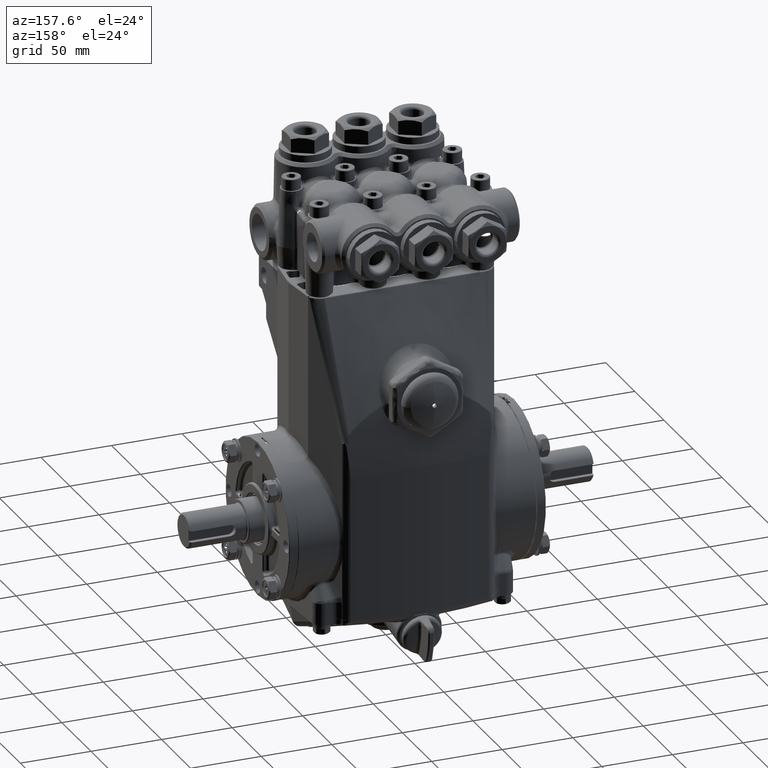
[diagram: clean part render]
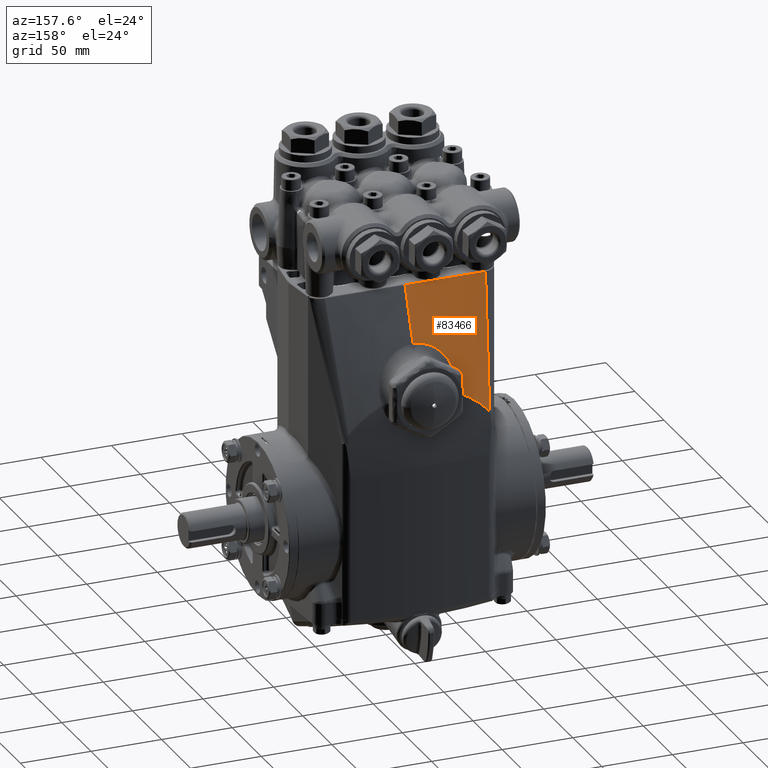
[diagram: same view with one face highlighted and labeled with its STEP entity id]
A machine part, auxiliary view. The second image highlights one B-rep face of the part: STEP entity #83466.
In plain terms, the highlighted face is a freeform B-spline surface patch.
Its self-contained STEP definition (entity closure, byte-faithful):
#472 = CARTESIAN_POINT ( 'NONE',  ( -2.198604993840025834, 1.303204552003782268, 6.521000121180325237 ) ) ;
#669 = CARTESIAN_POINT ( 'NONE',  ( 0.4024140580146031154, 2.282714137246169894, 3.885816525513271724 ) ) ;
#1845 = CARTESIAN_POINT ( 'NONE',  ( -2.242889468066143088, 1.303183471566980778, 6.520931740362723161 ) ) ;
#2796 = CARTESIAN_POINT ( 'NONE',  ( -0.8691335855865260918, 1.974967700795423831, 4.623107657032841544 ) ) ;
#3302 = CARTESIAN_POINT ( 'NONE',  ( -2.015857065217431909, 2.098060744278819278, 3.583443737743760238 ) ) ;
#3479 = CARTESIAN_POINT ( 'NONE',  ( -0.8181274097910946619, 1.954937035283333513, 4.692363439441778361 ) ) ;
#4719 = ORIENTED_EDGE ( 'NONE', *, *, #107452, .T. ) ;
#4836 = CARTESIAN_POINT ( 'NONE',  ( -0.5084002517577607128, 1.880453817892811408, 4.953136979052163547 ) ) ;
#5051 = B_SPLINE_CURVE_WITH_KNOTS ( 'NONE', 3,
 ( #106447, #74937, #117618, #64433, #107120, #11216, #132794 ),
 .UNSPECIFIED., .F., .F.,
 ( 4, 3, 4 ),
 ( 0.0003374136303950777760, 0.02424589558524162941, 0.03933821924561142075 ),
 .UNSPECIFIED. ) ;
#5546 = CARTESIAN_POINT ( 'NONE',  ( -1.048946471091012800, 2.114250418279458810, 4.163105313470231827 ) ) ;
#5657 = CARTESIAN_POINT ( 'NONE',  ( -1.138347952338380820, 1.299212598425195875, 6.535433070866143446 ) ) ;
#6911 = CARTESIAN_POINT ( 'NONE',  ( -1.048450376831963071, 2.113259157913101038, 4.166210843315372614 ) ) ;
#7025 = CARTESIAN_POINT ( 'NONE',  ( -1.072539464497699990, 2.276068596957412815, 3.677786751617869054 ) ) ;
#7600 = CARTESIAN_POINT ( 'NONE',  ( -1.047744645977775502, 2.111873502821445925, 4.170555755565200862 ) ) ;
#7709 = CARTESIAN_POINT ( 'NONE',  ( -1.815914156972153304, 1.940961843331305614, 4.336021358452839536 ) ) ;
#8311 = CARTESIAN_POINT ( 'NONE',  ( -1.690339794217348590, 1.302815946655424995, 6.523803629161010420 ) ) ;
#9063 = CARTESIAN_POINT ( 'NONE',  ( 1.514041149352872040, 2.268035144051591345, 3.427713295126958215 ) ) ;
#9564 = CARTESIAN_POINT ( 'NONE',  ( -2.072394130862306838, 1.303234569111179963, 6.521304771530743061 ) ) ;
#9761 = CARTESIAN_POINT ( 'NONE',  ( 0.2058134450199307908, 1.627294459996755371, 5.660028040929791615 ) ) ;
#10444 = CARTESIAN_POINT ( 'NONE',  ( 1.448806484794300076, 1.299212598425195875, 6.535433070866140781 ) ) ;
#10923 = CARTESIAN_POINT ( 'NONE',  ( -1.897157614048781582, 1.303140485526238512, 6.522164192415416117 ) ) ;
#11121 = CARTESIAN_POINT ( 'NONE',  ( -0.1016464413616585544, 1.627297632012053574, 5.660126067892908175 ) ) ;
#11216 = CARTESIAN_POINT ( 'NONE',  ( -7.840713946942983381E-16, 1.773257215420733113, 5.270665689158987810 ) ) ;
#12312 = CARTESIAN_POINT ( 'NONE',  ( -2.074328466914488356, 1.303234098720613021, 6.521300201827714638 ) ) ;
#12565 = CARTESIAN_POINT ( 'NONE',  ( -0.2112056046048229052, 1.848997435336054762, 5.063510545592998291 ) ) ;
#13069 = CARTESIAN_POINT ( 'NONE',  ( -2.009893760231598936, 2.118068184554910971, 3.508496124013047446 ) ) ;
#13244 = CARTESIAN_POINT ( 'NONE',  ( -0.8375030996107400982, 1.962022833840463942, 4.667781914844892022 ) ) ;
#13821 = CARTESIAN_POINT ( 'NONE',  ( -1.130691403279651341, 2.270550212597886919, 3.664058202181445623 ) ) ;
#13954 = CARTESIAN_POINT ( 'NONE',  ( -0.4618312546916218952, 1.873506977541567364, 4.977546552910339983 ) ) ;
#15327 = CARTESIAN_POINT ( 'NONE',  ( -0.7102915475202077333, 1.922010874072109132, 4.807259245018982163 ) ) ;
#16139 = CARTESIAN_POINT ( 'NONE',  ( -1.891075764596496178, 1.620087220878250633, 5.435727214659490159 ) ) ;
#16851 = CARTESIAN_POINT ( 'NONE',  ( -0.9975791325887850558, 1.951315450445037403, 4.657373076864156580 ) ) ;
#18581 = VERTEX_POINT ( 'NONE', #51079 ) ;
#18921 = CARTESIAN_POINT ( 'NONE',  ( -2.168877686853869946, 1.617727434252478336, 5.363219384641560339 ) ) ;
#19585 = CARTESIAN_POINT ( 'NONE',  ( -0.4139447099412297271, 1.299212598425195875, 6.535433070866140781 ) ) ;
#20011 = ORIENTED_EDGE ( 'NONE', *, *, #108133, .T. ) ;
#20260 = CARTESIAN_POINT ( 'NONE',  ( 1.034861774853070848, 1.299212598425195875, 6.535433070866140781 ) ) ;
#20726 = EDGE_CURVE ( 'NONE', #79881, #111250, #44635, .T. ) ;
#20748 = CARTESIAN_POINT ( 'NONE',  ( -1.903826226595207727, 1.303133148083458037, 6.522169719155704648 ) ) ;
#20950 = CARTESIAN_POINT ( 'NONE',  ( 0.8278894198824566786, 1.299212598425195875, 6.535433070866140781 ) ) ;
#21441 = CARTESIAN_POINT ( 'NONE',  ( -2.072625457868662480, 1.303234512756410890, 6.521304225542129629 ) ) ;
#21632 = CARTESIAN_POINT ( 'NONE',  ( -0.2020875553735168029, 1.955258294199790248, 4.780912005149046351 ) ) ;
#22311 = CARTESIAN_POINT ( 'NONE',  ( 0.7948310577097567053, 2.279523450189995692, 3.785796457838987550 ) ) ;
#23764 = CARTESIAN_POINT ( 'NONE',  ( -0.2276133532787871505, 1.849995200701688880, 5.060022512891737989 ) ) ;
#24311 = CARTESIAN_POINT ( 'NONE',  ( -1.622572283600502985, 2.260474850262625068, 3.353590572003123604 ) ) ;
#24439 = CARTESIAN_POINT ( 'NONE',  ( -0.2603030567198865164, 1.852272057910120395, 5.052057761357116483 ) ) ;
#25135 = CARTESIAN_POINT ( 'NONE',  ( -0.2439497408880068885, 1.851106528970796194, 5.056135439263398368 ) ) ;
#25813 = CARTESIAN_POINT ( 'NONE',  ( -0.3505700416128306740, 1.859876814287212632, 5.025405078837122730 ) ) ;
#26357 = CARTESIAN_POINT ( 'NONE',  ( -1.905459695143534526, 2.251777812233334952, 3.090971539333773332 ) ) ;
#28000 = CARTESIAN_POINT ( 'NONE',  ( -2.069723549706145693, 1.299212598425195875, 6.535433070866140781 ) ) ;
#28679 = CARTESIAN_POINT ( 'NONE',  ( -0.8025696767874468396, 1.952787162655243547, 4.703408496314382070 ) ) ;
#29752 = ORIENTED_EDGE ( 'NONE', *, *, #53412, .T. ) ;
#30075 = CARTESIAN_POINT ( 'NONE',  ( -0.1996451555749676476, 2.283281142087087545, 3.903651472290499136 ) ) ;
#30735 = CARTESIAN_POINT ( 'NONE',  ( 0.4101011592990198573, 1.627046444698853955, 5.652227555748518206 ) ) ;
#31218 = CARTESIAN_POINT ( 'NONE',  ( -1.695594360879107088, 1.302839862579967312, 6.523765088554132063 ) ) ;
#31423 = CARTESIAN_POINT ( 'NONE',  ( 2.078524289917953460, 2.249544390757207690, 2.859597025273891369 ) ) ;
#32130 = CARTESIAN_POINT ( 'NONE',  ( 0.4139447099412282283, 1.299212598425195875, 6.535433070866140781 ) ) ;
#32613 = CARTESIAN_POINT ( 'NONE',  ( -1.901844769942740321, 1.303135566700967640, 6.522167269863963668 ) ) ;
#32810 = CARTESIAN_POINT ( 'NONE',  ( -0.6209170649118443963, 1.299212598425195875, 6.535433070866142558 ) ) ;
#32833 = CARTESIAN_POINT ( 'NONE',  ( -1.041533217244492660, 2.271803740172789077, 3.703202409397690520 ) ) ;
#34257 = CARTESIAN_POINT ( 'NONE',  ( -0.5844638775328970803, 1.893395328412785350, 4.907646046683542096 ) ) ;
#34347 = VERTEX_POINT ( 'NONE', #32833 ) ;
#34772 = CARTESIAN_POINT ( 'NONE',  ( -2.029393201424144255, 2.051820080033732729, 3.756581077384122391 ) ) ;
#34956 = CARTESIAN_POINT ( 'NONE',  ( -0.9598595248348679165, 2.020223441476601600, 4.468376312234677350 ) ) ;
#35547 = B_SPLINE_CURVE_WITH_KNOTS ( 'NONE', 3,
 ( #100033, #55276, #99348, #46837, #100723, #12565, #23764, #25135, #65783, #24439, #108465, #25813, #67152, #55961, #13954, #120336, #109856, #90222, #89516, #4836, #87458, #34257, #68537, #109154, #130154, #76968, #15327, #67855, #98651, #56674, #121741, #3479, #13244, #111235, #2796, #57352, #45469, #88156, #130857, #34956, #46162, #88832, #131536, #110558, #102121, #135003, #7600, #6911, #59444, #5546, #61505, #48214, #133608, #125187 ),
 .UNSPECIFIED., .F., .F.,
 ( 4, 2, 2, 1, 2, 2, 2, 2, 1, 1, 2, 2, 2, 1, 1, 1, 2, 2, 2, 1, 1, 1, 2, 2, 2, 2, 1, 1, 1, 1, 1, 2, 2, 4 ),
 ( 0.000000000000000000, 0.06249999999998329114, 0.09374999999997490896, 0.1093749999999708428, 0.1171874999999689415, 0.1249999999999670541, 0.1874999999999522604, 0.2187499999999451827, 0.2343749999999415745, 0.2421874999999394651, 0.2460937499999381051, 0.2499999999999367173, 0.3124999999999213407, 0.3437499999999136246, 0.3593749999999095723, 0.3671874999999076294, 0.3710937499999066858, 0.3749999999999057421, 0.4374999999998955835, 0.4687499999998904210, 0.4843749999998879785, 0.4921874999998865352, 0.4960937499998853695, 0.4999999999998842037, 0.6249999999998610001, 0.6874999999998490097, 0.7187499999998426814, 0.7343749999998395728, 0.7421874999998380185, 0.7460937499998371303, 0.7480468749998367972, 0.7490234374998369082, 0.7499999999998371303, 1.000000000000000000 ),
 .UNSPECIFIED. ) ;
#37810 = CARTESIAN_POINT ( 'NONE',  ( -1.984732554181799724, 1.619328761902418812, 5.412368713392144315 ) ) ;
#39199 = CARTESIAN_POINT ( 'NONE',  ( -1.094475627111260341, 1.950449930780007168, 4.630335524700627481 ) ) ;
#40579 = CARTESIAN_POINT ( 'NONE',  ( -0.5979691708398126027, 2.281413911206460199, 3.845027360530513416 ) ) ;
#41269 = CARTESIAN_POINT ( 'NONE',  ( 2.064016187563357363, 1.936334572335544513, 4.193623449363257372 ) ) ;
#41954 = CARTESIAN_POINT ( 'NONE',  ( 1.138347952338378155, 1.299212598425195875, 6.535433070866140781 ) ) ;
#42441 = CARTESIAN_POINT ( 'NONE',  ( -1.971954707261740047, 1.303127902564772622, 6.521987746791599427 ) ) ;
#42640 = CARTESIAN_POINT ( 'NONE',  ( 2.213572279827760170, 1.932767126646536937, 4.084875707137974210 ) ) ;
#43329 = CARTESIAN_POINT ( 'NONE',  ( 1.075040638229151746, 2.276030985658306971, 3.676614831474853240 ) ) ;
#44504 = CARTESIAN_POINT ( 'NONE',  ( -1.900585205842190151, 1.303137115142055880, 6.522165676073848672 ) ) ;
#44635 = B_SPLINE_CURVE_WITH_KNOTS ( 'NONE', 3,
 ( #103367, #50156, #94226, #92147 ),
 .UNSPECIFIED., .F., .F.,
 ( 4, 4 ),
 ( 0.4332994890773434471, 0.4362303611599745445 ),
 .UNSPECIFIED. ) ;
#45284 = CARTESIAN_POINT ( 'NONE',  ( -1.980576549137500475, 2.213915170793006038, 3.149390972694495971 ) ) ;
#45469 = CARTESIAN_POINT ( 'NONE',  ( -0.8763790847005360485, 1.978118488699655231, 4.612266306818693984 ) ) ;
#45979 = CARTESIAN_POINT ( 'NONE',  ( -2.034696585288667148, 2.033395393086714797, 3.825531984624838344 ) ) ;
#46162 = CARTESIAN_POINT ( 'NONE',  ( -1.002224558917678365, 2.054022228700103092, 4.356355509081242694 ) ) ;
#46837 = CARTESIAN_POINT ( 'NONE',  ( -0.1562445097660399018, 1.846125881416177394, 5.073543618274282352 ) ) ;
#47358 = CARTESIAN_POINT ( 'NONE',  ( -2.039592545178605221, 2.016255469052942395, 3.889656437366334707 ) ) ;
#48214 = CARTESIAN_POINT ( 'NONE',  ( -1.072105156390874336, 2.161155364773630350, 4.016254122249142355 ) ) ;
#48326 = CARTESIAN_POINT ( 'NONE',  ( -1.034861774853073735, 1.299212598425195875, 6.535433070866143446 ) ) ;
#49002 = VERTEX_POINT ( 'NONE', #56194 ) ;
#49722 = CARTESIAN_POINT ( 'NONE',  ( -0.9789378114566406053, 2.277366876454958611, 3.718343079863162703 ) ) ;
#50156 = CARTESIAN_POINT ( 'NONE',  ( -1.693853009375102969, 1.302818093157324553, 6.523763931886704448 ) ) ;
#50996 = CARTESIAN_POINT ( 'NONE',  ( -1.126893372803539961, 1.303347117195267080, 6.523392559263681889 ) ) ;
#51072 = CARTESIAN_POINT ( 'NONE',  ( 1.561287046156886182, 1.945094295509459670, 4.463619887040017886 ) ) ;
#51079 = CARTESIAN_POINT ( 'NONE',  ( 0.000000000000000000, 1.303874827123127744, 6.522994084420179028 ) ) ;
#51766 = CARTESIAN_POINT ( 'NONE',  ( 2.069723549706143917, 1.299212598425195875, 6.535433070866140781 ) ) ;
#52252 = CARTESIAN_POINT ( 'NONE',  ( -2.033518159628054711, 1.303226970221583070, 6.521455456323041133 ) ) ;
#52445 = CARTESIAN_POINT ( 'NONE',  ( -0.2069723549706150856, 1.299212598425195875, 6.535433070866140781 ) ) ;
#52923 = CARTESIAN_POINT ( 'NONE',  ( -2.091119276760457613, 1.303230026504733186, 6.521260417363283324 ) ) ;
#53120 = CARTESIAN_POINT ( 'NONE',  ( 0.2069723549706137533, 1.299212598425195875, 6.535433070866140781 ) ) ;
#53412 = EDGE_CURVE ( 'NONE', #111250, #18581, #59240, .T. ) ;
#53479 = EDGE_CURVE ( 'NONE', #34347, #49002, #79278, .T. ) ;
#53816 = CARTESIAN_POINT ( 'NONE',  ( -0.4002828220077736532, 2.282531958115326720, 3.880126332154517410 ) ) ;
#55018 = CARTESIAN_POINT ( 'NONE',  ( -2.070565611758128810, 1.303235005464962626, 6.521309118756675183 ) ) ;
#55276 = CARTESIAN_POINT ( 'NONE',  ( -0.04502569453652381648, 1.842806143284725806, 5.085118422620766410 ) ) ;
#55830 = CARTESIAN_POINT ( 'NONE',  ( -1.386629650403558456, 2.265946635969432688, 3.521905276535707507 ) ) ;
#55961 = CARTESIAN_POINT ( 'NONE',  ( -0.4319975725424940460, 1.869442297146117316, 4.991823606273102065 ) ) ;
#56194 = CARTESIAN_POINT ( 'NONE',  ( -1.969283401333570938, 2.249277433038161078, 3.017030524756072474 ) ) ;
#56539 = CARTESIAN_POINT ( 'NONE',  ( -1.696676590981896160, 2.258456798862484849, 3.292011194069374813 ) ) ;
#56674 = CARTESIAN_POINT ( 'NONE',  ( -0.7490518416406762858, 1.932381296769864809, 4.770943243063372030 ) ) ;
#57352 = CARTESIAN_POINT ( 'NONE',  ( -0.8734901318143187821, 1.976855944317258418, 4.616609424987959009 ) ) ;
#58564 = CARTESIAN_POINT ( 'NONE',  ( -2.104023726110235692, 1.781150927990455823, 4.765521334715924873 ) ) ;
#59240 = B_SPLINE_CURVE_WITH_KNOTS ( 'NONE', 3,
 ( #8311, #50996, #93692, #63589 ),
 .UNSPECIFIED., .F., .F.,
 ( 4, 4 ),
 ( 0.01406537931565059185, 0.05700002236171951980 ),
 .UNSPECIFIED. ) ;
#59444 = CARTESIAN_POINT ( 'NONE',  ( -1.048748597885513112, 2.113853807759729975, 4.164347667581993484 ) ) ;
#59556 = CARTESIAN_POINT ( 'NONE',  ( -2.138791567245843517, 1.934550967561894375, 4.139253177447304033 ) ) ;
#59959 = CARTESIAN_POINT ( 'NONE',  ( -2.104176596812008082, 1.780569754446585717, 4.767677203724272061 ) ) ;
#60232 = FACE_OUTER_BOUND ( 'NONE', #105353, .T. ) ;
#61505 = CARTESIAN_POINT ( 'NONE',  ( -1.049053237010273865, 2.114465622598539873, 4.162431387521945858 ) ) ;
#61612 = CARTESIAN_POINT ( 'NONE',  ( -2.276695904676759863, 1.299212598425195875, 6.535433070866140781 ) ) ;
#62292 = CARTESIAN_POINT ( 'NONE',  ( -0.1034861774853078620, 1.299212598425195875, 6.535433070866140781 ) ) ;
#62979 = CARTESIAN_POINT ( 'NONE',  ( 0.2046545350692477727, 1.955376321568314868, 4.784623010993441561 ) ) ;
#63589 = CARTESIAN_POINT ( 'NONE',  ( 0.000000000000000000, 1.303874827123127744, 6.522994084420179028 ) ) ;
#63668 = CARTESIAN_POINT ( 'NONE',  ( 1.655778839764914689, 1.299212598425195875, 6.535433070866140781 ) ) ;
#63927 = ORIENTED_EDGE ( 'NONE', *, *, #120342, .T. ) ;
#64144 = CARTESIAN_POINT ( 'NONE',  ( -2.048913166553662624, 1.303235879029812860, 6.521375478803422610 ) ) ;
#64433 = CARTESIAN_POINT ( 'NONE',  ( -6.747251032203251776E-16, 1.634231296623841034, 5.641591560323128363 ) ) ;
#64829 = CARTESIAN_POINT ( 'NONE',  ( -2.065850031007234300, 1.303235838194539031, 6.521321346276030440 ) ) ;
#65030 = CARTESIAN_POINT ( 'NONE',  ( 1.343176999786138914, 2.271678482896280382, 3.540933654448064516 ) ) ;
#65531 = CARTESIAN_POINT ( 'NONE',  ( -2.103710276262927170, 1.303227008921030272, 6.521230196800539503 ) ) ;
#65634 = ORIENTED_EDGE ( 'NONE', *, *, #20726, .T. ) ;
#65783 = CARTESIAN_POINT ( 'NONE',  ( -0.2548243414440665155, 1.851872647711632958, 5.053455288309906202 ) ) ;
#66294 = CARTESIAN_POINT ( 'NONE',  ( -1.992170046785848747, 2.176693751127848575, 3.288863769030317741 ) ) ;
#67152 = CARTESIAN_POINT ( 'NONE',  ( -0.4118410756967394448, 1.866914452991983442, 5.000699872643941113 ) ) ;
#67227 = VERTEX_POINT ( 'NONE', #78888 ) ;
#67778 = CARTESIAN_POINT ( 'NONE',  ( -2.242889468066143088, 1.303183471566980778, 6.520931740362723161 ) ) ;
#67855 = CARTESIAN_POINT ( 'NONE',  ( -0.7142577851939858613, 1.923058061256917473, 4.803591491492423593 ) ) ;
#68537 = CARTESIAN_POINT ( 'NONE',  ( -0.6363244316096204889, 1.904216260181281095, 4.869651898683002855 ) ) ;
#68858 = B_SPLINE_CURVE_WITH_KNOTS ( 'NONE', 3,
 ( #1845, #74642, #472, #65531, #52923, #95644, #12312, #117326, #21441, #9564, #138322, #55018, #64829, #64144, #52252, #76711, #42441, #85835, #87202, #85140, #20748, #97020, #97702, #32613, #106829, #44504, #10923, #94973, #129897, #119393, #108216, #31218 ),
 .UNSPECIFIED., .F., .F.,
 ( 4, 2, 1, 1, 1, 2, 2, 1, 1, 1, 2, 2, 1, 1, 1, 2, 2, 1, 1, 1, 2, 4 ),
 ( 0.000000000000000000, 0.1083248722693957306, 0.1218654813030701500, 0.1235580574322795999, 0.1244043454968843110, 0.1248274895291866943, 0.1250390615453377263, 0.1252506335614887445, 0.1286357858199022042, 0.1354060903367290403, 0.1624873084040359406, 0.2166497445386491028, 0.2437309626059556700, 0.2471161148643692407, 0.2488086909935763036, 0.2496549790581798767, 0.2500781230904816077, 0.2505012671227833665, 0.2572715716396186125, 0.2708121806732906034, 0.3249746168079745701, 0.4332994890773434471 ),
 .UNSPECIFIED. ) ;
#69320 = CARTESIAN_POINT ( 'NONE',  ( -2.380182082162066504, 1.299212598425195875, 6.535433070866140781 ) ) ;
#70448 = CARTESIAN_POINT ( 'NONE',  ( -2.039255149049658655, 2.017440514121979334, 3.885223523361690301 ) ) ;
#70729 = CARTESIAN_POINT ( 'NONE',  ( -1.448806484794302518, 1.299212598425195875, 6.535433070866143446 ) ) ;
#71127 = CARTESIAN_POINT ( 'NONE',  ( -2.067507495042413268, 1.917100978669542988, 4.260115974954152840 ) ) ;
#71402 = CARTESIAN_POINT ( 'NONE',  ( -1.899741558657453311, 1.939444925379641971, 4.289304355918147849 ) ) ;
#72793 = CARTESIAN_POINT ( 'NONE',  ( 0.7154840230876414742, 1.626295873618706089, 5.628694108209940872 ) ) ;
#73463 = CARTESIAN_POINT ( 'NONE',  ( -0.4048367846522590296, 1.954758838218616512, 4.765228578391724312 ) ) ;
#74150 = CARTESIAN_POINT ( 'NONE',  ( 1.820408839518392607, 2.259648125356275461, 3.168757087023454488 ) ) ;
#74642 = CARTESIAN_POINT ( 'NONE',  ( -2.241477257648621269, 1.303196635085215105, 6.520880795183003897 ) ) ;
#74937 = CARTESIAN_POINT ( 'NONE',  ( -4.905913607710590776E-16, 1.413993621865241579, 6.229193234341924956 ) ) ;
#75516 = CARTESIAN_POINT ( 'NONE',  ( 1.986618646310226444, 1.619357774068889144, 5.413207742918578980 ) ) ;
#76309 = B_SPLINE_SURFACE_WITH_KNOTS ( 'NONE', 3, 3, ( 
 ( #114107, #123938, #93086, #113435 ),
 ( #81921, #59556, #82595, #69320 ),
 ( #103624, #114806, #18921, #61612 ),
 ( #102926, #71402, #37810, #28000 ),
 ( #112741, #7709, #16139, #104300 ),
 ( #90324, #79841, #135115, #122527 ),
 ( #112035, #101540, #123230, #70729 ),
 ( #7025, #39199, #124626, #5657 ),
 ( #49722, #16851, #92405, #48326 ),
 ( #91000, #28679, #94479, #126012 ),
 ( #40579, #96528, #107025, #32810 ),
 ( #53816, #73463, #107709, #19585 ),
 ( #30075, #21632, #117527, #52445 ),
 ( #137174, #105676, #11121, #62292 ),
 ( #137848, #62979, #9761, #53120 ),
 ( #669, #138521, #30735, #32130 ),
 ( #93772, #116830, #72793, #104975 ),
 ( #22311, #84657, #136478, #20950 ),
 ( #126678, #116137, #106354, #20260 ),
 ( #43329, #83305, #95172, #41954 ),
 ( #65030, #127336, #115483, #10444 ),
 ( #9063, #51072, #86031, #63668 ),
 ( #74150, #128719, #75516, #51766 ),
 ( #118199, #41269, #95842, #83987 ),
 ( #31423, #42640, #85343, #128041 ) ),
 .UNSPECIFIED., .F., .F., .F.,
 ( 4, 2, 2, 2, 2, 1, 2, 2, 2, 2, 2, 2, 4 ),
 ( 4, 4 ),
 ( 0.000000000000000000, 0.06249999999999977796, 0.1249999999999997780, 0.2499999999999997780, 0.3124999999999997780, 0.3749999999999997780, 0.4374999999999998890, 0.4999999999999998890, 0.6249999999999998890, 0.6874999999999997780, 0.7499999999999997780, 0.8749999999999998890, 1.000000000000000000 ),
 ( 0.000000000000000000, 1.000000000000000000 ),
 .UNSPECIFIED. ) ;
#76711 = CARTESIAN_POINT ( 'NONE',  ( -1.996573721879082886, 1.303188368631058802, 6.521705108787855920 ) ) ;
#76787 = CARTESIAN_POINT ( 'NONE',  ( -1.969283401333570938, 2.249277433038161078, 3.017030524756072474 ) ) ;
#76968 = CARTESIAN_POINT ( 'NONE',  ( -0.7043244490450779605, 1.920447369413672334, 4.812735924575123114 ) ) ;
#77487 = B_SPLINE_CURVE_WITH_KNOTS ( 'NONE', 3,
 ( #76787, #45284, #66294, #13069, #3302, #87975, #34772, #45979, #78168, #92114, #70448, #47358, #111749, #71127, #124350, #79557, #90046, #113154, #132749, #122254, #58564, #59959, #100541, #80942, #102639, #92798, #101951 ),
 .UNSPECIFIED., .F., .F.,
 ( 4, 2, 2, 1, 1, 1, 2, 2, 1, 1, 1, 1, 1, 1, 2, 2, 2, 4 ),
 ( 0.005641731690138021039, 0.1293381763867609835, 0.1911863987350724825, 0.2221105099092279822, 0.2375725654963057876, 0.2453035932898448845, 0.2491691071866144469, 0.2530346210833839815, 0.3767310657800118645, 0.4385792881283260836, 0.4695033993024831931, 0.4849654548895614981, 0.4926964826831005118, 0.4965619965798699353, 0.4984947535282545084, 0.5004275104766390259, 0.7478203998698899069, 0.9952132892631408989 ),
 .UNSPECIFIED. ) ;
#78168 = CARTESIAN_POINT ( 'NONE',  ( -2.037354366251948434, 2.024106466280659156, 3.860286317184686844 ) ) ;
#78888 = CARTESIAN_POINT ( 'NONE',  ( 7.856720868780860474E-16, 1.842770180353480391, 5.085202755651217821 ) ) ;
#79278 = B_SPLINE_CURVE_WITH_KNOTS ( 'NONE', 3,
 ( #99904, #13821, #109729, #55830, #132098, #24311, #56539, #99221, #26357, #130020 ),
 .UNSPECIFIED., .F., .F.,
 ( 4, 2, 2, 2, 4 ),
 ( 0.004531225126507739884, 0.01195000812040867937, 0.01936879111430962752, 0.02678757410821057394, 0.03420635710211152036 ),
 .UNSPECIFIED. ) ;
#79557 = CARTESIAN_POINT ( 'NONE',  ( -2.095277330354888612, 1.814225585600651502, 4.642765349930773056 ) ) ;
#79841 = CARTESIAN_POINT ( 'NONE',  ( -1.558289455644661370, 1.945165731996254532, 4.465837177507690825 ) ) ;
#79881 = VERTEX_POINT ( 'NONE', #84986 ) ;
#80942 = CARTESIAN_POINT ( 'NONE',  ( -2.151067203562875729, 1.604579134061053347, 5.417896058936713111 ) ) ;
#81921 = CARTESIAN_POINT ( 'NONE',  ( -2.018096309787731801, 2.252220152130243402, 2.941163230737885659 ) ) ;
#82595 = CARTESIAN_POINT ( 'NONE',  ( -2.259486824703954788, 1.616881782993545125, 5.337343124156722851 ) ) ;
#83305 = CARTESIAN_POINT ( 'NONE',  ( 1.096143076265560623, 1.950424856580603272, 4.629554244605282420 ) ) ;
#83466 = ADVANCED_FACE ( 'NONE', ( #60232 ), #76309, .F. ) ;
#83987 = CARTESIAN_POINT ( 'NONE',  ( 2.276695904676758531, 1.299212598425195875, 6.535433070866140781 ) ) ;
#84657 = CARTESIAN_POINT ( 'NONE',  ( 0.8058505117673232521, 1.952753166268395901, 4.702341995514705886 ) ) ;
#84986 = CARTESIAN_POINT ( 'NONE',  ( -1.695594360879107088, 1.302839862579967312, 6.523765088554132063 ) ) ;
#85140 = CARTESIAN_POINT ( 'NONE',  ( -1.906521298295523303, 1.303130060796677814, 6.522172367098517221 ) ) ;
#85343 = CARTESIAN_POINT ( 'NONE',  ( 2.348620269737566879, 1.615989862535866628, 5.310154389002057052 ) ) ;
#85835 = CARTESIAN_POINT ( 'NONE',  ( -1.935008617338049630, 1.303111762778909943, 6.522151766865674993 ) ) ;
#86031 = CARTESIAN_POINT ( 'NONE',  ( 1.608532942960900547, 1.622153446967327772, 5.499526478953079334 ) ) ;
#87202 = CARTESIAN_POINT ( 'NONE',  ( -1.921151242050709973, 1.303115180536739137, 6.522180386412981257 ) ) ;
#87458 = CARTESIAN_POINT ( 'NONE',  ( -0.5483710643121679773, 1.886801629246836143, 4.930825655352372827 ) ) ;
#87975 = CARTESIAN_POINT ( 'NONE',  ( -2.024869860137846977, 2.067350199555262336, 3.698439582320026009 ) ) ;
#88156 = CARTESIAN_POINT ( 'NONE',  ( -0.8778577183282735286, 1.978770219747418402, 4.610025332469225745 ) ) ;
#88832 = CARTESIAN_POINT ( 'NONE',  ( -1.014349966220424948, 2.065643596123559522, 4.318281743276188855 ) ) ;
#89352 = VERTEX_POINT ( 'NONE', #67778 ) ;
#89516 = CARTESIAN_POINT ( 'NONE',  ( -0.5059088115912473427, 1.880061655986753566, 4.954515287383319588 ) ) ;
#90046 = CARTESIAN_POINT ( 'NONE',  ( -2.099823510332839760, 1.797076230404204722, 4.706431320396312401 ) ) ;
#90222 = CARTESIAN_POINT ( 'NONE',  ( -0.5010535940836021718, 1.879304619600165926, 4.957175873462685622 ) ) ;
#90324 = CARTESIAN_POINT ( 'NONE',  ( -1.509544763584533822, 2.268142298781783861, 3.431039230828464071 ) ) ;
#91000 = CARTESIAN_POINT ( 'NONE',  ( -0.7899098052399405878, 2.279574444770267050, 3.787396209038501382 ) ) ;
#92114 = CARTESIAN_POINT ( 'NONE',  ( -2.038494671652133494, 2.020109083724238364, 3.875240692620719241 ) ) ;
#92147 = CARTESIAN_POINT ( 'NONE',  ( -1.690339794217348590, 1.302815946655424995, 6.523803629161010420 ) ) ;
#92405 = CARTESIAN_POINT ( 'NONE',  ( -1.016220453720929395, 1.625264024435116639, 5.596403073865150013 ) ) ;
#92798 = CARTESIAN_POINT ( 'NONE',  ( -2.219596835928836054, 1.371663885670308280, 6.270709733077245218 ) ) ;
#93086 = CARTESIAN_POINT ( 'NONE',  ( -2.348620269737569544, 1.615989862535865962, 5.310154389002058828 ) ) ;
#93692 = CARTESIAN_POINT ( 'NONE',  ( -0.5634469790333801464, 1.303876253747656699, 6.522993007173084834 ) ) ;
#93772 = CARTESIAN_POINT ( 'NONE',  ( 0.6976455844686251240, 2.280462424005726074, 3.815216182897540609 ) ) ;
#94226 = CARTESIAN_POINT ( 'NONE',  ( -1.692101517647209841, 1.302814124229947801, 6.523780928714470129 ) ) ;
#94479 = CARTESIAN_POINT ( 'NONE',  ( -0.8152295483349530913, 1.625999880540219822, 5.619420783590262758 ) ) ;
#94973 = CARTESIAN_POINT ( 'NONE',  ( -1.883039598492668221, 1.303146309984112294, 6.522185264558583384 ) ) ;
#95172 = CARTESIAN_POINT ( 'NONE',  ( 1.117245514301969278, 1.624818727502899574, 5.582493657735712489 ) ) ;
#95644 = CARTESIAN_POINT ( 'NONE',  ( -2.076962821636054279, 1.303233458869344608, 6.521293970604745027 ) ) ;
#95671 = ORIENTED_EDGE ( 'NONE', *, *, #110345, .T. ) ;
#95842 = CARTESIAN_POINT ( 'NONE',  ( 2.170356046120057947, 1.617773585380370305, 5.364528260114698632 ) ) ;
#96528 = CARTESIAN_POINT ( 'NONE',  ( -0.6056184688638230895, 1.954013473612705720, 4.741829263975723130 ) ) ;
#97020 = CARTESIAN_POINT ( 'NONE',  ( -1.902671178431931676, 1.303134545400175259, 6.522168333798768813 ) ) ;
#97702 = CARTESIAN_POINT ( 'NONE',  ( -1.902093651456501000, 1.303135256425061783, 6.522167599393831061 ) ) ;
#98651 = CARTESIAN_POINT ( 'NONE',  ( -0.7162784349061362965, 1.923595726491191815, 4.801708514956535723 ) ) ;
#99221 = CARTESIAN_POINT ( 'NONE',  ( -1.838112334298227291, 2.254110649831492008, 3.160691993887410955 ) ) ;
#99348 = CARTESIAN_POINT ( 'NONE',  ( -0.08976380259595712063, 1.843649325101285763, 5.082185539537545260 ) ) ;
#99904 = CARTESIAN_POINT ( 'NONE',  ( -1.041533217244492660, 2.271803740172789077, 3.703202409397690520 ) ) ;
#100033 = CARTESIAN_POINT ( 'NONE',  ( 7.856720868780860474E-16, 1.842770180353480391, 5.085202755651217821 ) ) ;
#100541 = CARTESIAN_POINT ( 'NONE',  ( -2.128129798516092741, 1.689511524556636335, 5.105438811511312736 ) ) ;
#100723 = CARTESIAN_POINT ( 'NONE',  ( -0.1783005835005510853, 1.847153346818469766, 5.069955334882952691 ) ) ;
#101540 = CARTESIAN_POINT ( 'NONE',  ( -1.377948966803905329, 1.947534219307221592, 4.539444691850007096 ) ) ;
#101951 = CARTESIAN_POINT ( 'NONE',  ( -2.242889468066143088, 1.303183471566980778, 6.520931740362723161 ) ) ;
#102121 = CARTESIAN_POINT ( 'NONE',  ( -1.043233210972307701, 2.103611648645474563, 4.196554117986327270 ) ) ;
#102639 = CARTESIAN_POINT ( 'NONE',  ( -2.196801966743004542, 1.445655353129325693, 6.000532626565719951 ) ) ;
#102926 = CARTESIAN_POINT ( 'NONE',  ( -1.814750563133107342, 2.259561088856864242, 3.166239998444151826 ) ) ;
#103367 = CARTESIAN_POINT ( 'NONE',  ( -1.695594360879107088, 1.302839862579967312, 6.523765088554132063 ) ) ;
#103624 = CARTESIAN_POINT ( 'NONE',  ( -1.953241251208090556, 2.254757105907042813, 3.018792012192400342 ) ) ;
#104300 = CARTESIAN_POINT ( 'NONE',  ( -1.966237372220838386, 1.299212598425195875, 6.535433070866140781 ) ) ;
#104975 = CARTESIAN_POINT ( 'NONE',  ( 0.7244032423971497048, 1.299212598425195875, 6.535433070866140781 ) ) ;
#105353 = EDGE_LOOP ( 'NONE', ( #65634, #29752, #95671, #20011, #124016, #4719, #63927 ) ) ;
#105676 = CARTESIAN_POINT ( 'NONE',  ( -0.09980670523800924676, 1.955382665598911718, 4.784819064919673792 ) ) ;
#106354 = CARTESIAN_POINT ( 'NONE',  ( 1.017659377637137652, 1.625244951225160328, 5.595808111142073216 ) ) ;
#106447 = CARTESIAN_POINT ( 'NONE',  ( 0.000000000000000000, 1.303874827123127744, 6.522994084420179028 ) ) ;
#106829 = CARTESIAN_POINT ( 'NONE',  ( -1.901712566931274662, 1.303135731024777755, 6.522167096488042048 ) ) ;
#107025 = CARTESIAN_POINT ( 'NONE',  ( -0.6132677668878337984, 1.626613036018950798, 5.638631167420932400 ) ) ;
#107120 = CARTESIAN_POINT ( 'NONE',  ( -6.747251032203251776E-16, 1.703744252783319535, 5.456128623527068733 ) ) ;
#107452 = EDGE_CURVE ( 'NONE', #49002, #89352, #77487, .T. ) ;
#107709 = CARTESIAN_POINT ( 'NONE',  ( -0.4093907472967443506, 1.626985718321906083, 5.650330824628932547 ) ) ;
#108133 = EDGE_CURVE ( 'NONE', #67227, #34347, #35547, .T. ) ;
#108216 = CARTESIAN_POINT ( 'NONE',  ( -1.759949606251109522, 1.302967366142548933, 6.523123405842072842 ) ) ;
#108465 = CARTESIAN_POINT ( 'NONE',  ( -0.3086435396890369054, 1.855913069811160110, 5.039315346933300965 ) ) ;
#109154 = CARTESIAN_POINT ( 'NONE',  ( -0.6616849484283897631, 1.909859309707075070, 4.849848268328067036 ) ) ;
#109729 = CARTESIAN_POINT ( 'NONE',  ( -1.217594213962654992, 2.269128931642199642, 3.619967092695878907 ) ) ;
#109856 = CARTESIAN_POINT ( 'NONE',  ( -0.4937582157875373690, 1.878177591332976126, 4.961136603252557009 ) ) ;
#110345 = EDGE_CURVE ( 'NONE', #18581, #67227, #5051, .T. ) ;
#110558 = CARTESIAN_POINT ( 'NONE',  ( -1.036477241104133196, 2.092734511596072267, 4.231022694858762812 ) ) ;
#111235 = CARTESIAN_POINT ( 'NONE',  ( -0.8588063631930812347, 1.970600794406622835, 4.638154576237058180 ) ) ;
#111250 = VERTEX_POINT ( 'NONE', #128241 ) ;
#111749 = CARTESIAN_POINT ( 'NONE',  ( -2.051087863689119661, 1.975864094663217996, 4.040739276079862385 ) ) ;
#112035 = CARTESIAN_POINT ( 'NONE',  ( -1.342520207808706623, 2.271695029748234784, 3.541450502341939810 ) ) ;
#112741 = CARTESIAN_POINT ( 'NONE',  ( -1.740752549347811096, 2.261836465784360151, 3.236315502246188025 ) ) ;
#113154 = CARTESIAN_POINT ( 'NONE',  ( -2.102087708257041943, 1.788501175651054487, 4.738252424846279176 ) ) ;
#113435 = CARTESIAN_POINT ( 'NONE',  ( -2.483668259647373144, 1.299212598425195875, 6.535433070866140781 ) ) ;
#114107 = CARTESIAN_POINT ( 'NONE',  ( -2.078524289917963674, 2.249544390757206358, 2.859597025273892257 ) ) ;
#114806 = CARTESIAN_POINT ( 'NONE',  ( -2.061059469030980029, 1.936242270079760575, 4.191005698416980785 ) ) ;
#115483 = CARTESIAN_POINT ( 'NONE',  ( 1.413596656458246281, 1.623367893248890415, 5.537266598726781730 ) ) ;
#116137 = CARTESIAN_POINT ( 'NONE',  ( 1.000456980421204012, 1.951277304025125003, 4.656183151418004762 ) ) ;
#116830 = CARTESIAN_POINT ( 'NONE',  ( 0.7065648037781333546, 1.953379148812216082, 4.721955145553740962 ) ) ;
#117326 = CARTESIAN_POINT ( 'NONE',  ( -2.073193760571991895, 1.303234374564354425, 6.521302883110692505 ) ) ;
#117527 = CARTESIAN_POINT ( 'NONE',  ( -0.2045299551720659303, 1.627235446312492950, 5.658172538007593566 ) ) ;
#117618 = CARTESIAN_POINT ( 'NONE',  ( -6.747251032203251776E-16, 1.524112451085763542, 5.935392394274551897 ) ) ;
#118199 = CARTESIAN_POINT ( 'NONE',  ( 1.957676329006656779, 2.254895559290718943, 3.022718638611816555 ) ) ;
#119393 = CARTESIAN_POINT ( 'NONE',  ( -1.810273177648906051, 1.303062822555161704, 6.522669118617584694 ) ) ;
#120336 = CARTESIAN_POINT ( 'NONE',  ( -0.4766478234450647333, 1.875607545460807213, 4.970167336891750054 ) ) ;
#120342 = EDGE_CURVE ( 'NONE', #89352, #79881, #68858, .T. ) ;
#121741 = CARTESIAN_POINT ( 'NONE',  ( -0.7778794209856284558, 1.941119972772706870, 4.740407087958465659 ) ) ;
#122254 = CARTESIAN_POINT ( 'NONE',  ( -2.103701330979389716, 1.782375980943467386, 4.760976884162536393 ) ) ;
#122527 = CARTESIAN_POINT ( 'NONE',  ( -1.655778839764916688, 1.299212598425195875, 6.535433070866143446 ) ) ;
#123230 = CARTESIAN_POINT ( 'NONE',  ( -1.413377725799104034, 1.623373408866208623, 5.537438881358075271 ) ) ;
#123938 = CARTESIAN_POINT ( 'NONE',  ( -2.213572279827766831, 1.932767126646536271, 4.084875707137975986 ) ) ;
#124016 = ORIENTED_EDGE ( 'NONE', *, *, #53479, .T. ) ;
#124350 = CARTESIAN_POINT ( 'NONE',  ( -2.086114179300275762, 1.848521304219685302, 4.515339146392889802 ) ) ;
#124626 = CARTESIAN_POINT ( 'NONE',  ( -1.116411789724820469, 1.624831264602601522, 5.582884297783385463 ) ) ;
#125187 = CARTESIAN_POINT ( 'NONE',  ( -1.041533217244492660, 2.271803740172789077, 3.703202409397690520 ) ) ;
#126012 = CARTESIAN_POINT ( 'NONE',  ( -0.8278894198824591211, 1.299212598425195875, 6.535433070866143446 ) ) ;
#126678 = CARTESIAN_POINT ( 'NONE',  ( 0.9832545832052707047, 2.277309656825089235, 3.716558191693936308 ) ) ;
#127336 = CARTESIAN_POINT ( 'NONE',  ( 1.378386828122192709, 1.947523188072585176, 4.539100126587422679 ) ) ;
#128041 = CARTESIAN_POINT ( 'NONE',  ( 2.483668259647373144, 1.299212598425195875, 6.535433070866140781 ) ) ;
#128241 = CARTESIAN_POINT ( 'NONE',  ( -1.690339794217348590, 1.302815946655424995, 6.523803629161010420 ) ) ;
#128719 = CARTESIAN_POINT ( 'NONE',  ( 1.903513742914309637, 1.939502949712582192, 4.290982414971016290 ) ) ;
#129897 = CARTESIAN_POINT ( 'NONE',  ( -1.864730188830584501, 1.303132562410159068, 6.522284185420521574 ) ) ;
#130020 = CARTESIAN_POINT ( 'NONE',  ( -1.969283401333570938, 2.249277433038161078, 3.017030524756072474 ) ) ;
#130154 = CARTESIAN_POINT ( 'NONE',  ( -0.6902769950272515942, 1.916850120894366238, 4.825340066037852260 ) ) ;
#130857 = CARTESIAN_POINT ( 'NONE',  ( -0.9236356003803153358, 1.999110996026121301, 4.540112691433789038 ) ) ;
#131536 = CARTESIAN_POINT ( 'NONE',  ( -1.029592317837583648, 2.083614413168315860, 4.260260794610823076 ) ) ;
#132098 = CARTESIAN_POINT ( 'NONE',  ( -1.467571004497538523, 2.264214088644782574, 3.468564571426206555 ) ) ;
#132749 = CARTESIAN_POINT ( 'NONE',  ( -2.103217578824546408, 1.784213553588428258, 4.754159994647659815 ) ) ;
#132794 = CARTESIAN_POINT ( 'NONE',  ( 7.856720868780860474E-16, 1.842770180353480391, 5.085202755651217821 ) ) ;
#133608 = CARTESIAN_POINT ( 'NONE',  ( -1.069097549018847015, 2.213484329464440847, 3.861603061293011674 ) ) ;
#135003 = CARTESIAN_POINT ( 'NONE',  ( -1.046293633251790256, 2.109109634995403493, 4.179235510771420081 ) ) ;
#135115 = CARTESIAN_POINT ( 'NONE',  ( -1.607034147704789140, 1.622189165210725204, 5.500635124186917579 ) ) ;
#136478 = CARTESIAN_POINT ( 'NONE',  ( 0.8168699658248899098, 1.625982882346795888, 5.618887533190423333 ) ) ;
#137174 = CARTESIAN_POINT ( 'NONE',  ( -0.09796696911435995303, 2.283467699185769195, 3.909512061946438966 ) ) ;
#137848 = CARTESIAN_POINT ( 'NONE',  ( 0.2034956251185647269, 2.283458183139874809, 3.909217981057091507 ) ) ;
#138322 = CARTESIAN_POINT ( 'NONE',  ( -2.072201655009445975, 1.303234615667855811, 6.521305226963368895 ) ) ;
#138521 = CARTESIAN_POINT ( 'NONE',  ( 0.4062576086568114864, 1.954880290972512036, 4.769022040630894743 ) ) ;